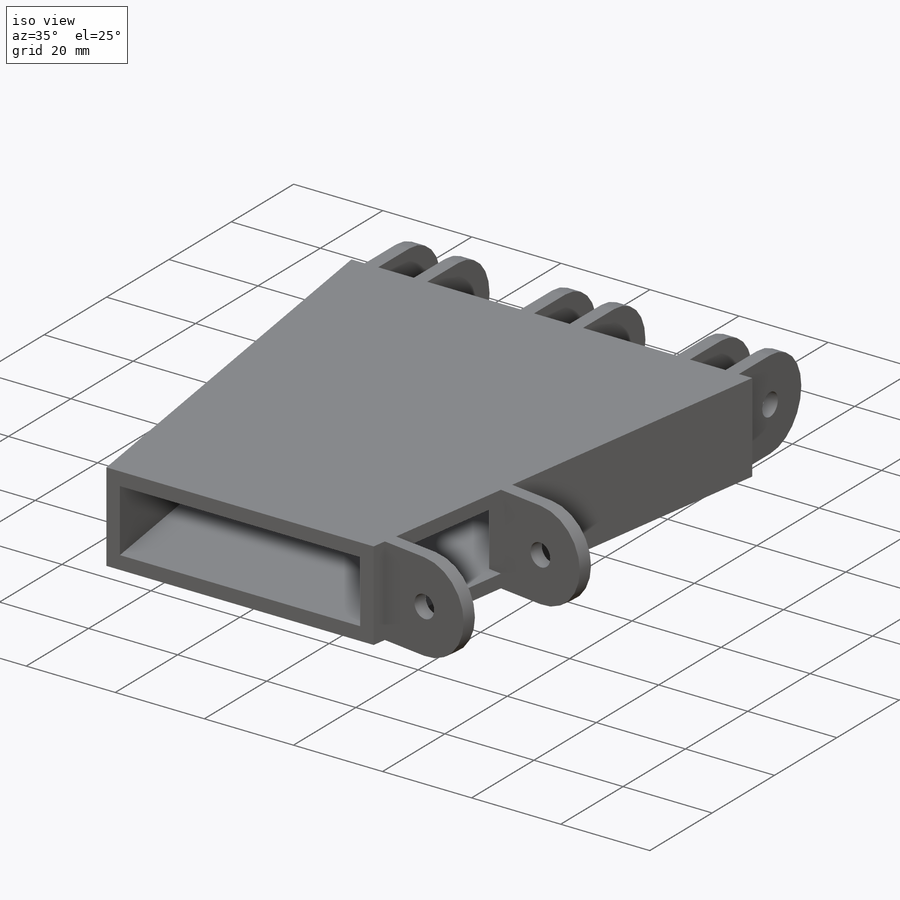
[diagram: iso view]
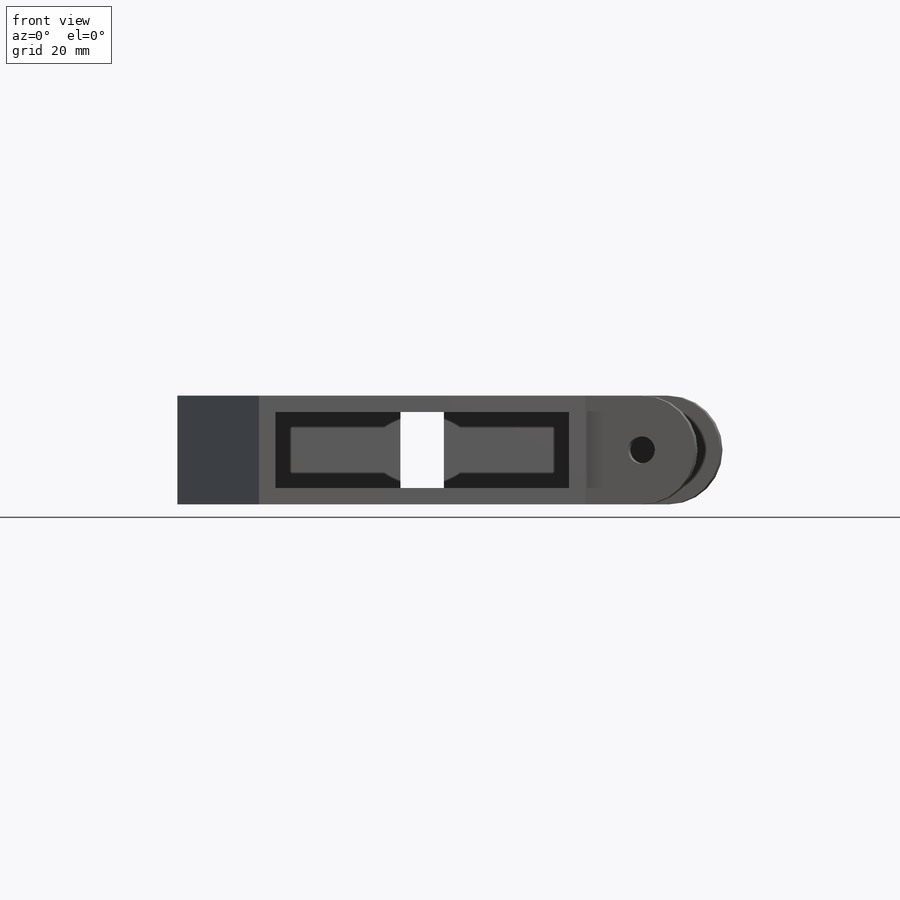
[diagram: front view]
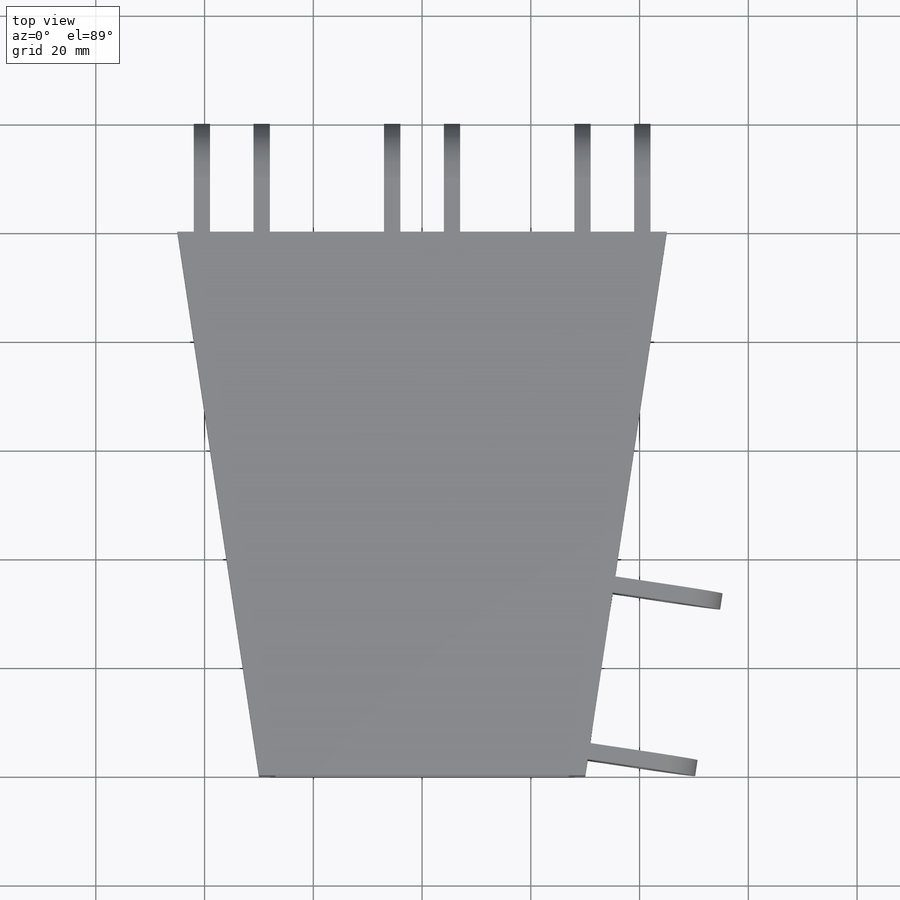
[diagram: top view]
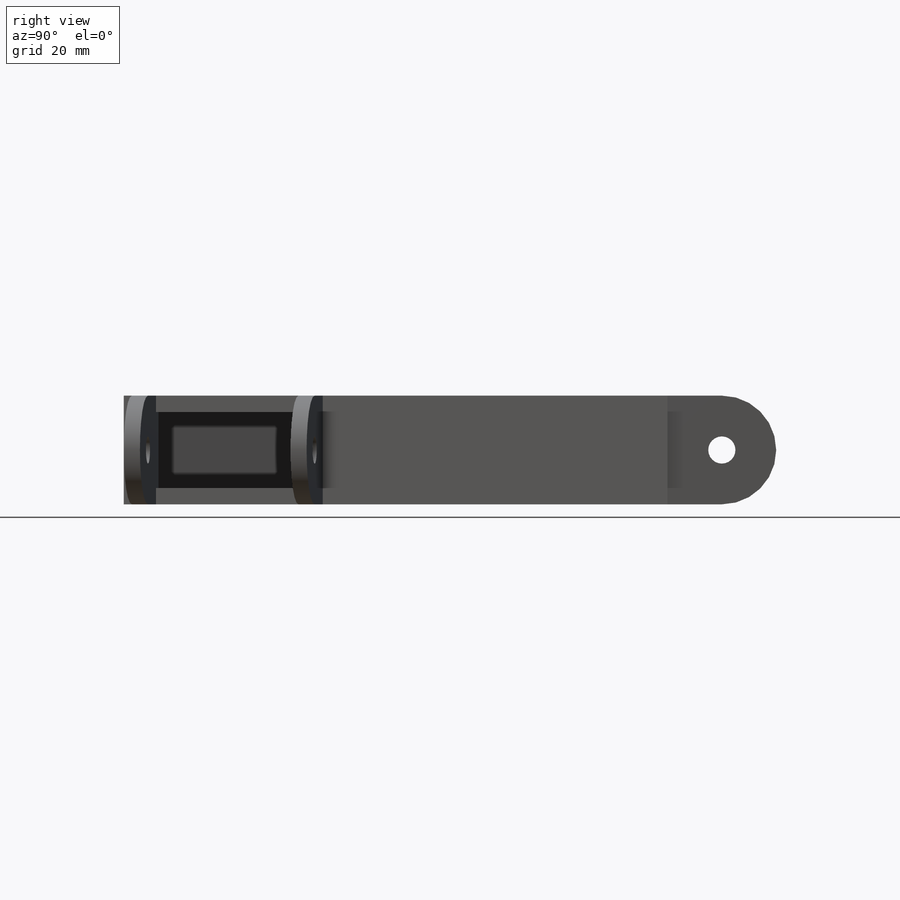
[diagram: right view]
SOLIDWORKS PART (.sldprt)
format: sldprt  version: not decoded by parser v0  size: 562,176 bytes
history: native  units: mm
features: sketch x5, extrude x3, pattern_linear x2, cut_extrude x2, material x1, shell x1, plane x1 (+11 scaffold rows collapsed)
feature tree (26):
  scaffold x11  (default folders/planes/origin — collapsed)
  material  "Material <not specified>"
  sketch  "Sketch1"  dims[c1.D1=~99.815586mm c2.D1=75.0deg c2.D2=~102.875941mm c3.D2=75.0deg c3.D3=90.0mm c3.D4=100.0mm c3.D5=~36.410162mm c3.D1=60.0mm]
  extrude  "Boss-Extrude1"  Depth=20mm
  sketch  "Sketch2"  dims[D2=10.0mm D3=5.0mm D1=10.0mm]
  extrude  "Boss-Extrude2"  Depth=14mm
  pattern_linear  "LPattern1"  Count1=3 Count2=1 Spacing1=35mm Spacing2=10mm
  shell  "Shell1"  Thickness=3mm
  sketch  "Sketch3"  dims[c1.D1=3.0mm c1.D2=3.0mm c1.D3=3.0mm c1.D4=3.0mm c1.D5=3.0mm c1.D6=3.0mm c2.D1=3.0mm c2.D3=3.0mm]
  cut_extrude  "Cut-Extrude1"  Depth=20mm
  plane  "thumb plane"
  sketch  "Sketch5"  dims[D2=5.0mm D1=10.0mm]
  extrude  "Boss-Extrude3"  Depth=3mm
  pattern_linear  "LPattern2"  Count1=2 Count2=1 Spacing1=31mm Spacing2=10mm
  sketch  "Sketch6"  dims[D1=3.0mm D2=3.0mm]
  cut_extrude  "Cut-Extrude2"  Depth=3mm
decode coverage: 13 of 13 modeling features carry decoded parameters
note: ~ marks probable driven/reference dimensions
note: suppression state not decoded; provenance and decode notes live in map.json
